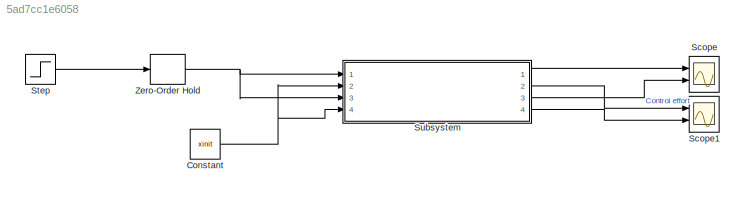
MODEL slx_5ad7cc1e6058
KIND model
CONFIG AbsTol = auto
CONFIG EnableMultiTasking = off
CONFIG FixedStep = auto
CONFIG MaxStep = auto
CONFIG MinStep = auto
CONFIG RelTol = 1e-3
CONFIG SampleTimeConstraint = Unconstrained
CONFIG Solver = VariableStepAuto
CONFIG SolverName = VariableStepAuto
CONFIG StartTime = 0.0
CONFIG StopTime = 50
BLOCK [Constant] Constant
  Value = xinit
BLOCK [Scope] Scope
  Floating = off
  NumInputPorts = 2
  Ports = [2]
  ScopeSpecificationString = Simulink.scopes.TimeScopeBlockCfg('CurrentConfiguration', extmgr.ConfigurationSet(extmgr.Configuration('Core','General UI',true),extmgr.Configuration('Core','Source UI',true),extmgr.Configuration('Sources','WiredSimulink',true,'DataLoggingVariableName','ScopeData1'),extmgr.Configuration('Visuals','Time Domain',true,'SerializedDisplays',{struct('MinYLimReal','-0.78633','MaxYLimReal','1.23668','YLab...<+1443ch>
BLOCK [Scope] Scope1
  Floating = off
  NumInputPorts = 2
  Ports = [2]
  ScopeSpecificationString = Simulink.scopes.TimeScopeBlockCfg('CurrentConfiguration', extmgr.ConfigurationSet(extmgr.Configuration('Core','General UI',true),extmgr.Configuration('Core','Source UI',true),extmgr.Configuration('Sources','WiredSimulink',true),extmgr.Configuration('Visuals','Time Domain',true,'SerializedDisplays',{struct('MinYLimReal','-100927.19434','MaxYLimReal','439470.0492','YLabelReal','','MinYLimMag','    0...<+1438ch>
BLOCK [Step] Step
  SampleTime = 0
  Time = 0
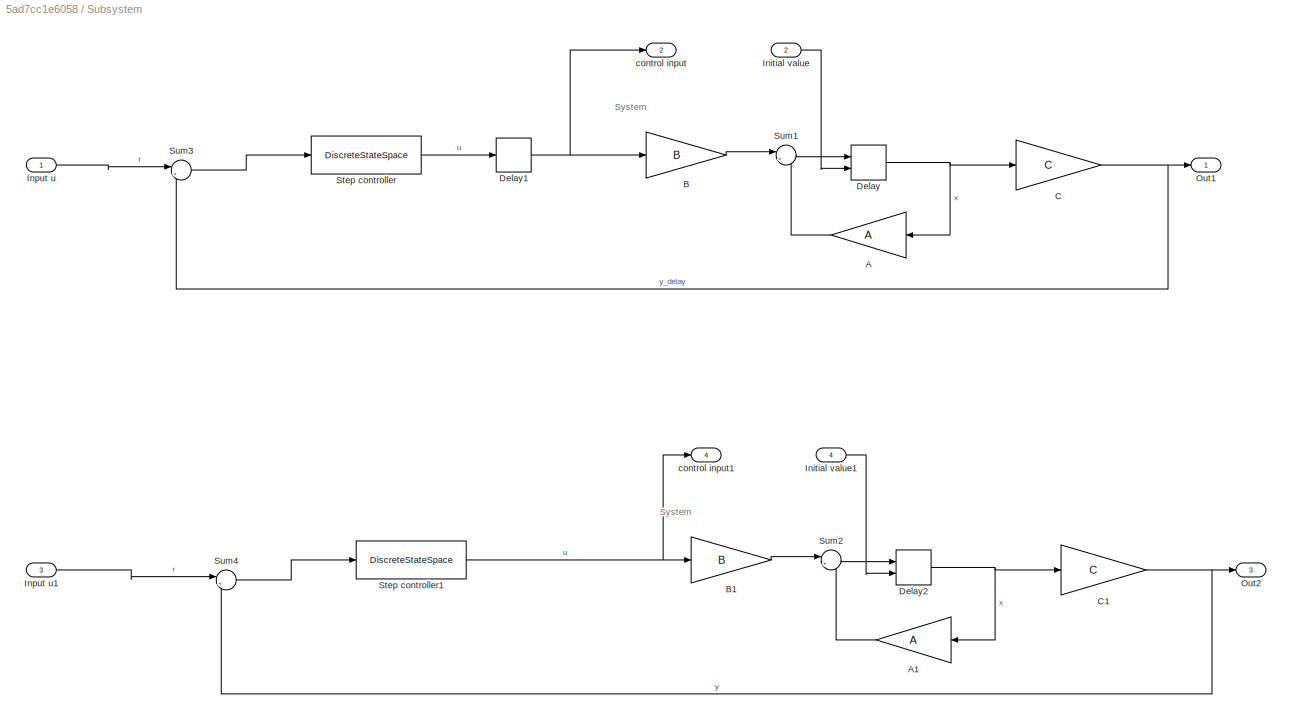
BLOCK [SubSystem] Subsystem
  Ports = [4, 4]
  RequestExecContextInheritance = off
BLOCK [Gain] Subsystem/A
  Gain = A
  Multiplication = Matrix(K*u)
  OutDataTypeStr = Inherit: Inherit via internal rule
  ParamDataTypeStr = Inherit: Inherit via internal rule
  SaturateOnIntegerOverflow = off
BLOCK [Gain] Subsystem/A1
  Gain = A
  Multiplication = Matrix(K*u)
  OutDataTypeStr = Inherit: Inherit via internal rule
  ParamDataTypeStr = Inherit: Inherit via internal rule
  SaturateOnIntegerOverflow = off
BLOCK [Gain] Subsystem/B
  Gain = B
  Multiplication = Matrix(K*u)
  OutDataTypeStr = Inherit: Inherit via internal rule
  ParamDataTypeStr = Inherit: Inherit via internal rule
  SaturateOnIntegerOverflow = off
BLOCK [Gain] Subsystem/B1
  Gain = B
  Multiplication = Matrix(K*u)
  OutDataTypeStr = Inherit: Inherit via internal rule
  ParamDataTypeStr = Inherit: Inherit via internal rule
  SaturateOnIntegerOverflow = off
BLOCK [Gain] Subsystem/C
  Gain = C
  Multiplication = Matrix(K*u)
  OutDataTypeStr = Inherit: Inherit via internal rule
  ParamDataTypeStr = Inherit: Inherit via internal rule
  SaturateOnIntegerOverflow = off
BLOCK [Gain] Subsystem/C1
  Gain = C
  Multiplication = Matrix(K*u)
  OutDataTypeStr = Inherit: Inherit via internal rule
  ParamDataTypeStr = Inherit: Inherit via internal rule
  SaturateOnIntegerOverflow = off
BLOCK [Delay] Subsystem/Delay
  DelayLength = 1
  InitialCondition = 0
  InitialConditionSource = Input port
  InputPortMap = u0,p4
  Ports = [2, 1]
  SampleTime = h
BLOCK [Delay] Subsystem/Delay1
  DelayLength = 1
  InitialCondition = 0
  InputPortMap = u0
  Ports = [1, 1]
BLOCK [Delay] Subsystem/Delay2
  DelayLength = 1
  InitialCondition = 0
  InitialConditionSource = Input port
  InputPortMap = u0,p4
  Ports = [2, 1]
  SampleTime = h
BLOCK [Inport] Subsystem/Initial value
  IconDisplay = Port number
  Port = 2
BLOCK [Inport] Subsystem/Initial value1
  IconDisplay = Port number
  Port = 4
BLOCK [Inport] Subsystem/Input u
  IconDisplay = Port number
BLOCK [Inport] Subsystem/Input u1
  IconDisplay = Port number
  Port = 3
BLOCK [Outport] Subsystem/Out1
  IconDisplay = Port number
BLOCK [Outport] Subsystem/Out2
  IconDisplay = Port number
  Port = 3
BLOCK [DiscreteStateSpace] Subsystem/Step controller
  A = Ac
  B = Bc
  C = Cc
  D = Dc
  SampleTime = h
BLOCK [DiscreteStateSpace] Subsystem/Step controller1
  A = Ac
  B = Bc
  C = Cc
  D = Dc
  SampleTime = h
BLOCK [Sum] Subsystem/Sum1
  IconShape = round
  InputSameDT = off
  Inputs = |++
  OutDataTypeStr = Inherit: Inherit via internal rule
  Ports = [2, 1]
  SaturateOnIntegerOverflow = off
BLOCK [Sum] Subsystem/Sum2
  IconShape = round
  InputSameDT = off
  Inputs = |++
  OutDataTypeStr = Inherit: Inherit via internal rule
  Ports = [2, 1]
  SaturateOnIntegerOverflow = off
BLOCK [Sum] Subsystem/Sum3
  IconShape = round
  InputSameDT = off
  Inputs = |+-
  OutDataTypeStr = Inherit: Inherit via internal rule
  Ports = [2, 1]
  SaturateOnIntegerOverflow = off
BLOCK [Sum] Subsystem/Sum4
  IconShape = round
  InputSameDT = off
  Inputs = |+-
  OutDataTypeStr = Inherit: Inherit via internal rule
  Ports = [2, 1]
  SaturateOnIntegerOverflow = off
BLOCK [Outport] Subsystem/control input
  IconDisplay = Port number
  Port = 2
BLOCK [Outport] Subsystem/control input1
  IconDisplay = Port number
  Port = 4
BLOCK [ZeroOrderHold] Zero-Order Hold
  SampleTime = h
ANNOTATION Subsystem: System
NET Constant:1 -> Subsystem:2, Subsystem:4
LINE Step:1 -> Zero-Order Hold:1
LINE Subsystem/A1:1 -> Subsystem/Sum2:2
LINE Subsystem/A:1 -> Subsystem/Sum1:2
LINE Subsystem/B1:1 -> Subsystem/Sum2:1
LINE Subsystem/B:1 -> Subsystem/Sum1:1
NET Subsystem/C1:1 -> Subsystem/Out2:1, Subsystem/Sum4:2
NET Subsystem/C:1 -> Subsystem/Out1:1, Subsystem/Sum3:2
NET Subsystem/Delay1:1 -> Subsystem/B:1, Subsystem/control input:1
NET Subsystem/Delay2:1 -> Subsystem/A1:1, Subsystem/C1:1
NET Subsystem/Delay:1 -> Subsystem/A:1, Subsystem/C:1
LINE Subsystem/Initial value1:1 -> Subsystem/Delay2:2
LINE Subsystem/Initial value:1 -> Subsystem/Delay:2
LINE Subsystem/Input u1:1 -> Subsystem/Sum4:1
LINE Subsystem/Input u:1 -> Subsystem/Sum3:1
NET Subsystem/Step controller1:1 -> Subsystem/B1:1, Subsystem/control input1:1
LINE Subsystem/Step controller:1 -> Subsystem/Delay1:1
LINE Subsystem/Sum1:1 -> Subsystem/Delay:1
LINE Subsystem/Sum2:1 -> Subsystem/Delay2:1
LINE Subsystem/Sum3:1 -> Subsystem/Step controller:1
LINE Subsystem/Sum4:1 -> Subsystem/Step controller1:1
LINE Subsystem:1 -> Scope:1
LINE Subsystem:2 -> Scope1:1
LINE Subsystem:3 -> Scope:2
LINE Subsystem:4 -> Scope1:2
NET Zero-Order Hold:1 -> Subsystem:1, Subsystem:3
note: NET lines group one-source signal fan-out (src -> all destinations, sorted); 1:1 wires keep LINE
